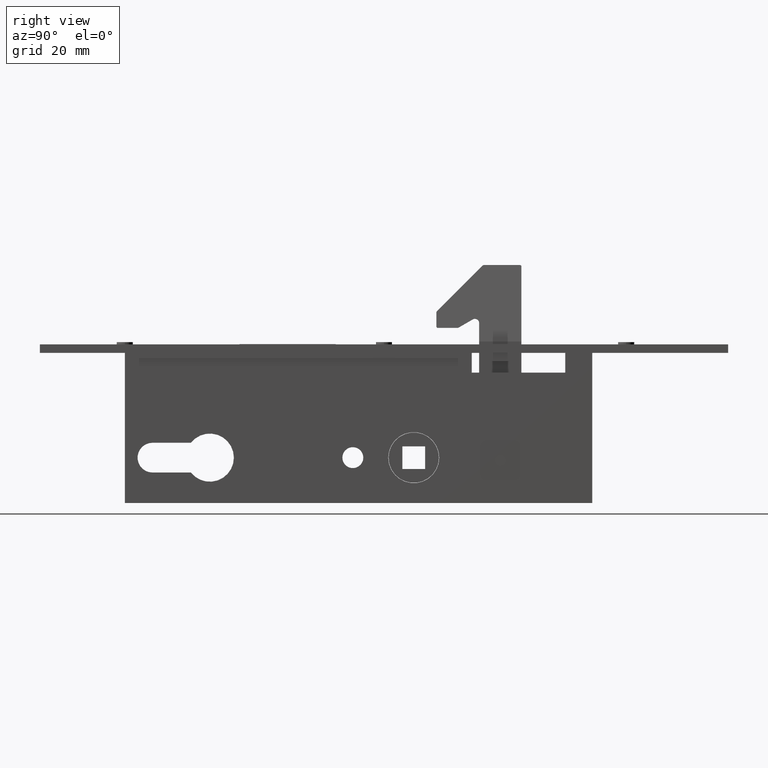
[diagram: clean part render]
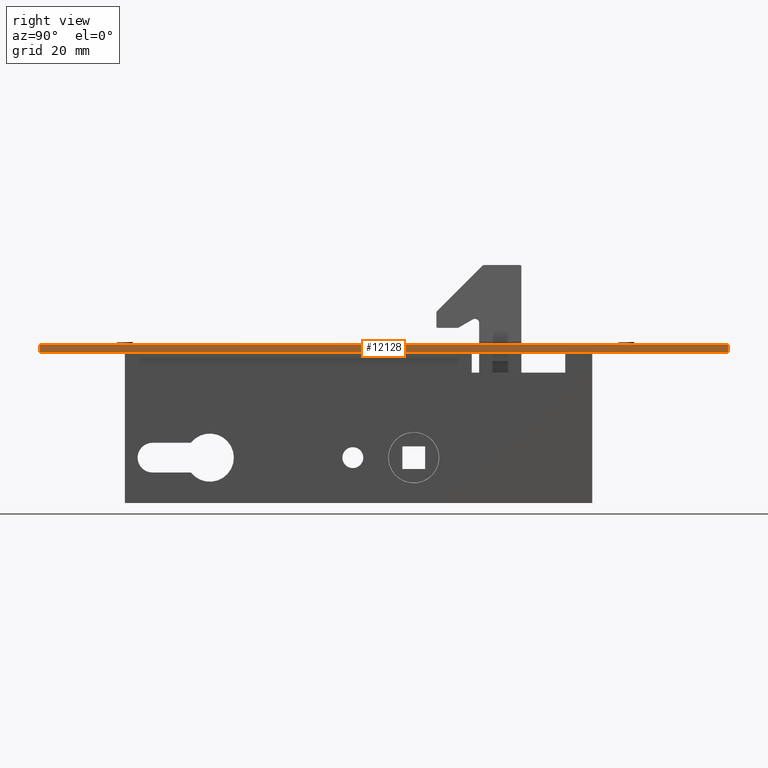
[diagram: same view with one face highlighted and labeled with its STEP entity id]
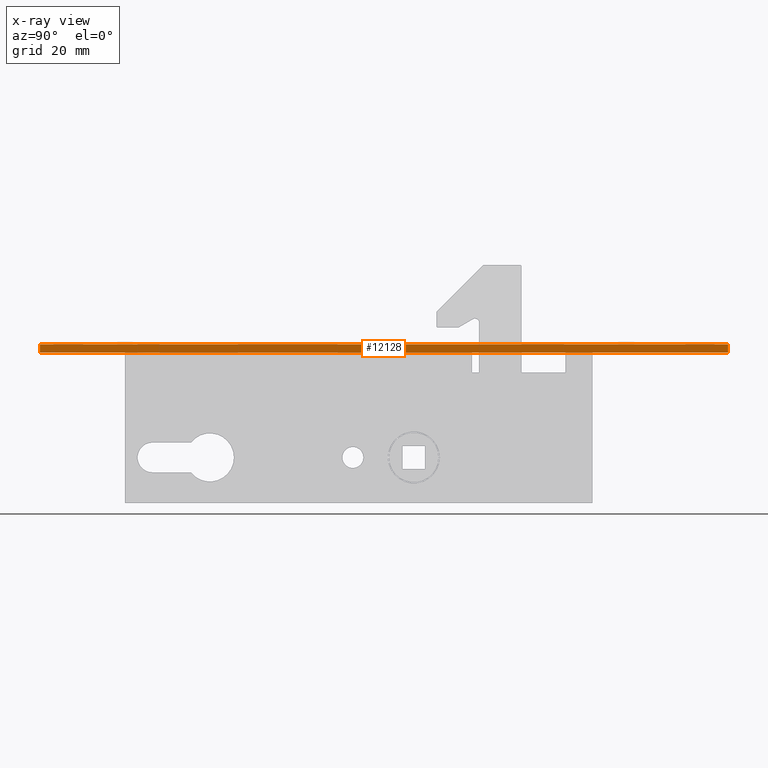
[diagram: x-ray of the same camera — body ghosted, the highlighted face saturated]
A machine part, right view. The second image highlights one B-rep face of the part: STEP entity #12128.
The next image is the same camera in x-ray: the body ghosted, the highlighted face saturated — about 0% of this face is hidden behind the body in this view.
In plain terms, the highlighted planar face has unit normal (-1, 0, 0).
Its self-contained STEP definition (entity closure, byte-faithful):
#74 = AXIS2_PLACEMENT_3D ( 'NONE', #1657, #3909, #9250 ) ;
#443 = VERTEX_POINT ( 'NONE', #11256 ) ;
#909 = CARTESIAN_POINT ( 'NONE',  ( 12.00000000000000000, 0.0000000000000000000, 0.0000000000000000000 ) ) ;
#967 = VERTEX_POINT ( 'NONE', #1586 ) ;
#1586 = CARTESIAN_POINT ( 'NONE',  ( 12.00000000000000000, 243.0000000000000000, 0.0000000000000000000 ) ) ;
#1604 = VERTEX_POINT ( 'NONE', #8686 ) ;
#1657 = CARTESIAN_POINT ( 'NONE',  ( 12.00000000000000000, 0.0000000000000000000, 3.000000000000000000 ) ) ;
#1674 = VECTOR ( 'NONE', #13117, 1000.000000000000000 ) ;
#1822 = EDGE_CURVE ( 'NONE', #1604, #9910, #10832, .T. ) ;
#1869 = ORIENTED_EDGE ( 'NONE', *, *, #4617, .T. ) ;
#1973 = FACE_OUTER_BOUND ( 'NONE', #13816, .T. ) ;
#2101 = VECTOR ( 'NONE', #6127, 1000.000000000000000 ) ;
#2789 = VECTOR ( 'NONE', #10873, 1000.000000000000000 ) ;
#3279 = CARTESIAN_POINT ( 'NONE',  ( 12.00000000000000000, 243.0000000000000000, 3.000000000000000000 ) ) ;
#3909 = DIRECTION ( 'NONE',  ( -1.000000000000000000, 0.0000000000000000000, 0.0000000000000000000 ) ) ;
#4189 = CARTESIAN_POINT ( 'NONE',  ( 12.00000000000000000, 0.0000000000000000000, 0.0000000000000000000 ) ) ;
#4617 = EDGE_CURVE ( 'NONE', #9910, #967, #11628, .T. ) ;
#4834 = EDGE_CURVE ( 'NONE', #443, #967, #8574, .T. ) ;
#5006 = ORIENTED_EDGE ( 'NONE', *, *, #1822, .T. ) ;
#6127 = DIRECTION ( 'NONE',  ( 0.0000000000000000000, 1.000000000000000000, 0.0000000000000000000 ) ) ;
#6465 = EDGE_CURVE ( 'NONE', #1604, #443, #13637, .T. ) ;
#6918 = VECTOR ( 'NONE', #13771, 1000.000000000000000 ) ;
#7607 = CARTESIAN_POINT ( 'NONE',  ( 12.00000000000000000, 0.0000000000000000000, 3.000000000000000000 ) ) ;
#8574 = LINE ( 'NONE', #3279, #2789 ) ;
#8686 = CARTESIAN_POINT ( 'NONE',  ( 12.00000000000000000, 0.0000000000000000000, 3.000000000000000000 ) ) ;
#9250 = DIRECTION ( 'NONE',  ( 0.0000000000000000000, 0.0000000000000000000, 1.000000000000000000 ) ) ;
#9910 = VERTEX_POINT ( 'NONE', #4189 ) ;
#10832 = LINE ( 'NONE', #11537, #6918 ) ;
#10873 = DIRECTION ( 'NONE',  ( -0.0000000000000000000, -0.0000000000000000000, -1.000000000000000000 ) ) ;
#11256 = CARTESIAN_POINT ( 'NONE',  ( 12.00000000000000000, 243.0000000000000000, 3.000000000000000000 ) ) ;
#11537 = CARTESIAN_POINT ( 'NONE',  ( 12.00000000000000000, 0.0000000000000000000, 3.000000000000000000 ) ) ;
#11628 = LINE ( 'NONE', #909, #2101 ) ;
#12128 = ADVANCED_FACE ( 'NONE', ( #1973 ), #12732, .F. ) ;
#12226 = ORIENTED_EDGE ( 'NONE', *, *, #6465, .F. ) ;
#12489 = ORIENTED_EDGE ( 'NONE', *, *, #4834, .F. ) ;
#12732 = PLANE ( 'NONE',  #74 ) ;
#13117 = DIRECTION ( 'NONE',  ( 0.0000000000000000000, 1.000000000000000000, 0.0000000000000000000 ) ) ;
#13637 = LINE ( 'NONE', #7607, #1674 ) ;
#13771 = DIRECTION ( 'NONE',  ( -0.0000000000000000000, -0.0000000000000000000, -1.000000000000000000 ) ) ;
#13816 = EDGE_LOOP ( 'NONE', ( #1869, #12489, #12226, #5006 ) ) ;